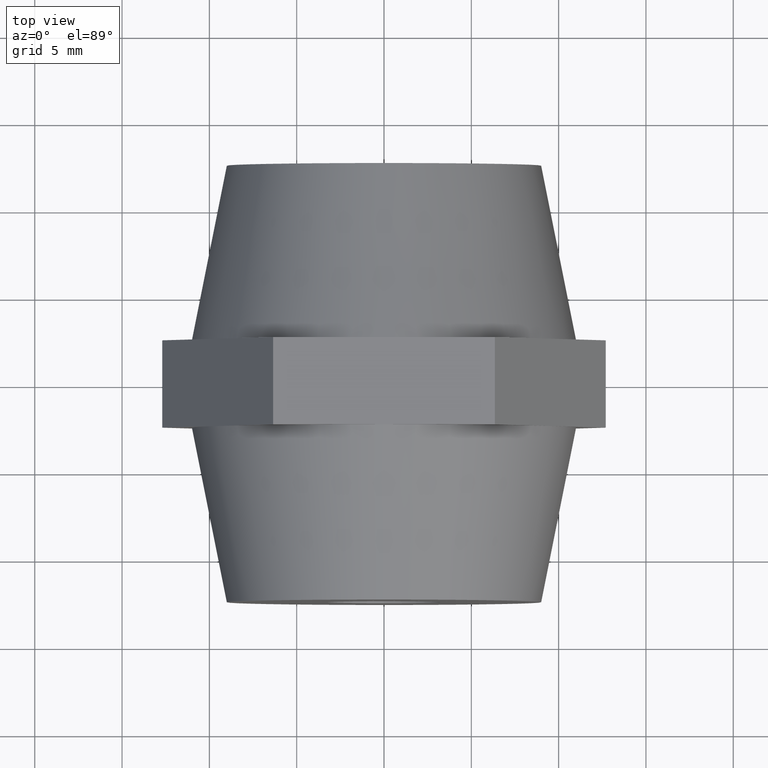
[diagram: clean part render]
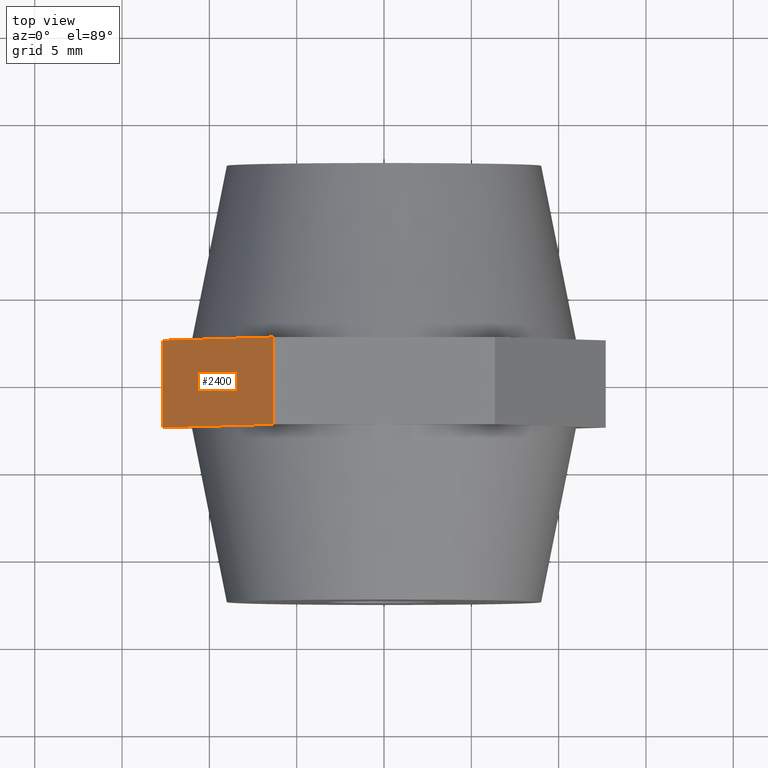
[diagram: same view with one face highlighted and labeled with its STEP entity id]
A machine part, top view. The second image highlights one B-rep face of the part: STEP entity #2400.
In plain terms, the highlighted planar face has unit normal (0.866, 0, -0.5).
Its self-contained STEP definition (entity closure, byte-faithful):
#39 = CARTESIAN_POINT ( 'NONE',  ( -12.70170592217176000, -2.500000000000000000, 1.115640536844243800E-015 ) ) ;
#94 = VERTEX_POINT ( 'NONE', #1939 ) ;
#120 = EDGE_CURVE ( 'NONE', #94, #865, #3899, .T. ) ;
#124 = CARTESIAN_POINT ( 'NONE',  ( -12.70170592217176000, 2.500000000000000000, 1.115640536844243800E-015 ) ) ;
#142 = DIRECTION ( 'NONE',  ( -0.4999999999999998900, 0.0000000000000000000, -0.8660254037844387100 ) ) ;
#163 = DIRECTION ( 'NONE',  ( 0.8660254037844387100, 0.0000000000000000000, -0.4999999999999998900 ) ) ;
#213 = LINE ( 'NONE', #546, #1904 ) ;
#222 = FACE_OUTER_BOUND ( 'NONE', #2770, .T. ) ;
#546 = CARTESIAN_POINT ( 'NONE',  ( -12.70170592217176000, -2.500000000000000000, 1.115640536844243800E-015 ) ) ;
#618 = EDGE_CURVE ( 'NONE', #865, #1020, #3483, .T. ) ;
#622 = LINE ( 'NONE', #2505, #3333 ) ;
#865 = VERTEX_POINT ( 'NONE', #2362 ) ;
#927 = ORIENTED_EDGE ( 'NONE', *, *, #3330, .T. ) ;
#1020 = VERTEX_POINT ( 'NONE', #1244 ) ;
#1035 = ORIENTED_EDGE ( 'NONE', *, *, #2741, .T. ) ;
#1189 = LINE ( 'NONE', #1388, #3521 ) ;
#1226 = DIRECTION ( 'NONE',  ( 0.0000000000000000000, -1.000000000000000000, 0.0000000000000000000 ) ) ;
#1244 = CARTESIAN_POINT ( 'NONE',  ( -6.350852961085890600, 2.500000000000000000, 11.00000000000000000 ) ) ;
#1297 = CARTESIAN_POINT ( 'NONE',  ( -12.70170592217176000, 2.500000000000000000, 1.115640536844243800E-015 ) ) ;
#1388 = CARTESIAN_POINT ( 'NONE',  ( -6.350852961085890600, 2.500000000000000000, 11.00000000000000000 ) ) ;
#1414 = CARTESIAN_POINT ( 'NONE',  ( -12.70170592217176000, -2.500000000000000000, 1.115640536844243800E-015 ) ) ;
#1625 = VECTOR ( 'NONE', #3092, 1000.000000000000000 ) ;
#1648 = DIRECTION ( 'NONE',  ( 0.4999999999999998900, 0.0000000000000000000, 0.8660254037844387100 ) ) ;
#1882 = CARTESIAN_POINT ( 'NONE',  ( -9.526279441628821200, -2.500000000000000000, 5.500000000000000000 ) ) ;
#1904 = VECTOR ( 'NONE', #3568, 1000.000000000000000 ) ;
#1939 = CARTESIAN_POINT ( 'NONE',  ( -12.70170592217176000, 2.500000000000000000, 1.115640536844243800E-015 ) ) ;
#1976 = DIRECTION ( 'NONE',  ( 0.0000000000000000000, -1.000000000000000000, 0.0000000000000000000 ) ) ;
#2215 = CARTESIAN_POINT ( 'NONE',  ( -6.350852961085890600, -2.500000000000000000, 11.00000000000000000 ) ) ;
#2362 = CARTESIAN_POINT ( 'NONE',  ( -9.526279441628831900, 2.500000000000000000, 5.500000000000000000 ) ) ;
#2400 = ADVANCED_FACE ( 'NONE', ( #222 ), #3746, .F. ) ;
#2432 = EDGE_CURVE ( 'NONE', #1020, #3167, #1189, .T. ) ;
#2505 = CARTESIAN_POINT ( 'NONE',  ( -12.70170592217176000, 2.500000000000000000, 1.115640536844243800E-015 ) ) ;
#2682 = VECTOR ( 'NONE', #1648, 1000.000000000000000 ) ;
#2702 = DIRECTION ( 'NONE',  ( 0.4999999999999998900, 0.0000000000000000000, 0.8660254037844387100 ) ) ;
#2741 = EDGE_CURVE ( 'NONE', #3767, #3619, #2811, .T. ) ;
#2770 = EDGE_LOOP ( 'NONE', ( #1035, #927, #3145, #2834, #2787, #3014 ) ) ;
#2787 = ORIENTED_EDGE ( 'NONE', *, *, #120, .F. ) ;
#2811 = LINE ( 'NONE', #39, #3388 ) ;
#2834 = ORIENTED_EDGE ( 'NONE', *, *, #618, .F. ) ;
#3014 = ORIENTED_EDGE ( 'NONE', *, *, #3364, .T. ) ;
#3025 = AXIS2_PLACEMENT_3D ( 'NONE', #124, #163, #142 ) ;
#3092 = DIRECTION ( 'NONE',  ( 0.4999999999999998900, 0.0000000000000000000, 0.8660254037844387100 ) ) ;
#3145 = ORIENTED_EDGE ( 'NONE', *, *, #2432, .F. ) ;
#3150 = CARTESIAN_POINT ( 'NONE',  ( -12.70170592217176000, 2.500000000000000000, 1.115640536844243800E-015 ) ) ;
#3167 = VERTEX_POINT ( 'NONE', #2215 ) ;
#3330 = EDGE_CURVE ( 'NONE', #3619, #3167, #213, .T. ) ;
#3333 = VECTOR ( 'NONE', #1226, 1000.000000000000000 ) ;
#3364 = EDGE_CURVE ( 'NONE', #94, #3767, #622, .T. ) ;
#3388 = VECTOR ( 'NONE', #2702, 1000.000000000000000 ) ;
#3483 = LINE ( 'NONE', #1297, #1625 ) ;
#3521 = VECTOR ( 'NONE', #1976, 1000.000000000000000 ) ;
#3568 = DIRECTION ( 'NONE',  ( 0.4999999999999998900, 0.0000000000000000000, 0.8660254037844387100 ) ) ;
#3619 = VERTEX_POINT ( 'NONE', #1882 ) ;
#3746 = PLANE ( 'NONE',  #3025 ) ;
#3767 = VERTEX_POINT ( 'NONE', #1414 ) ;
#3899 = LINE ( 'NONE', #3150, #2682 ) ;